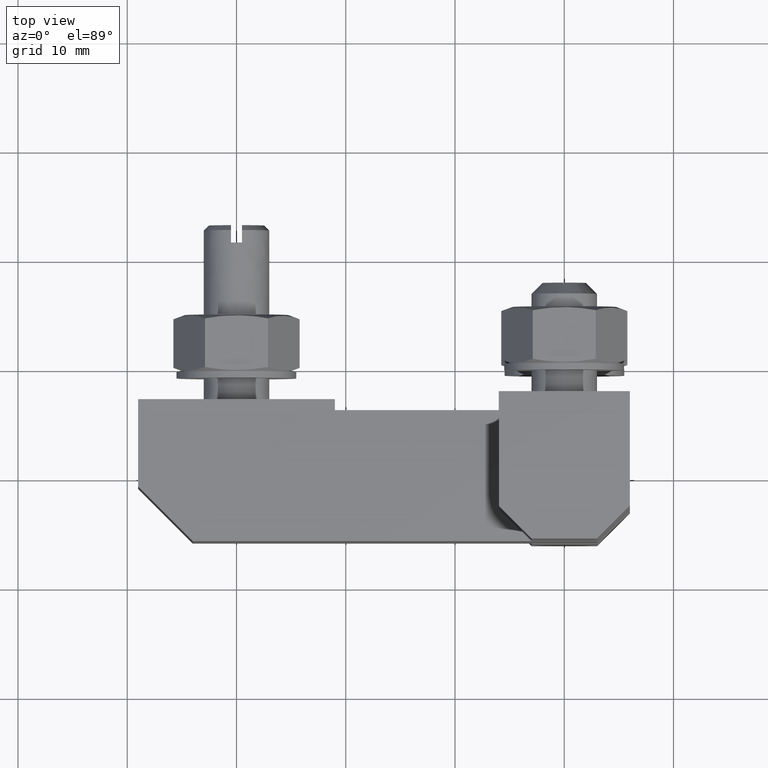
[diagram: clean part render]
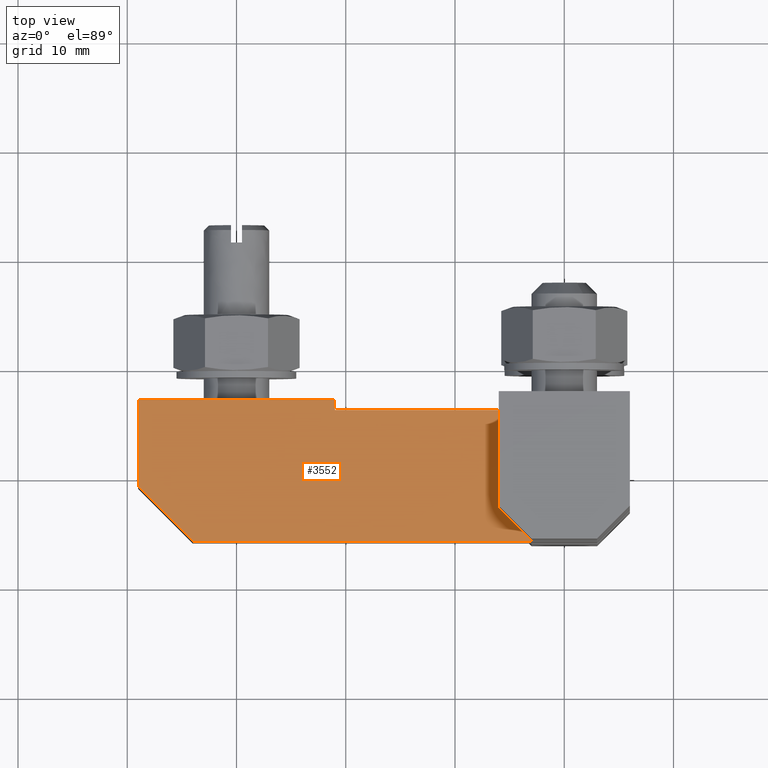
[diagram: same view with one face highlighted and labeled with its STEP entity id]
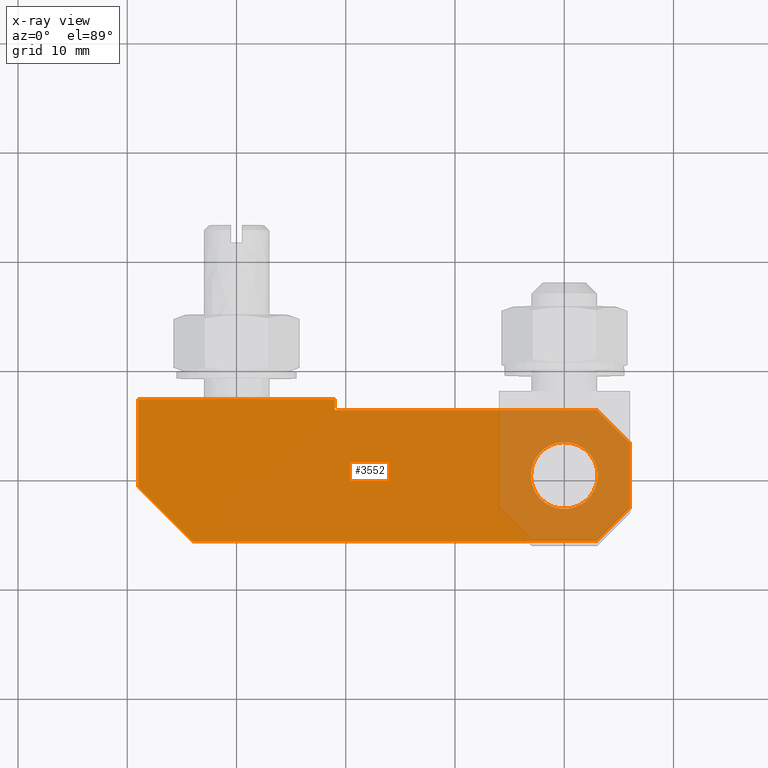
[diagram: x-ray of the same camera — body ghosted, the highlighted face saturated]
A machine part, top view. The second image highlights one B-rep face of the part: STEP entity #3552.
The next image is the same camera in x-ray: the body ghosted, the highlighted face saturated — about 20% of this face is hidden behind the body in this view.
In plain terms, the highlighted face is a freeform B-spline surface patch.
Its self-contained STEP definition (entity closure, byte-faithful):
#3131=CARTESIAN_POINT('',(-0.186198045604629,3.044311135185266,26.600001644901951));
#3132=VERTEX_POINT('',#3131);
#3138=CARTESIAN_POINT('',(-3.049999999999970,0.0,26.600001644901951));
#3139=VERTEX_POINT('',#3138);
#3140=CARTESIAN_POINT('',(-3.049999999999970,0.0,26.600001644901951));
#3141=CARTESIAN_POINT('',(-3.049999999999971,2.869153504018294,26.600001644901948));
#3142=CARTESIAN_POINT('',(-0.186198045604629,3.044311135185267,26.600001644901951));
#3150=(BOUNDED_CURVE()B_SPLINE_CURVE(2,(#3140,#3141,#3142),.UNSPECIFIED.,.F.,.U.)B_SPLINE_CURVE_WITH_KNOTS((3,3),(0.500000000000000,0.739332962239323),.UNSPECIFIED.)CURVE()GEOMETRIC_REPRESENTATION_ITEM()RATIONAL_B_SPLINE_CURVE((1.0,0.719603993286265,0.976072041667531))REPRESENTATION_ITEM(''));
#3151=EDGE_CURVE('',#3139,#3132,#3150,.T.);
#3153=CARTESIAN_POINT('',(0.360000960080733,-3.028679466158289,26.600001644901951));
#3154=VERTEX_POINT('',#3153);
#3155=CARTESIAN_POINT('',(0.360000960080733,-3.028679466158290,26.600001644901948));
#3156=CARTESIAN_POINT('',(0.180631818861247,-3.050000000000000,26.600001644901948));
#3157=CARTESIAN_POINT('',(3.019807E-014,-3.050000000000000,26.600001644901951));
#3158=CARTESIAN_POINT('',(-3.049999999999969,-3.050000000000001,26.600001644901958));
#3159=CARTESIAN_POINT('',(-3.049999999999970,0.0,26.600001644901951));
#3167=(BOUNDED_CURVE()B_SPLINE_CURVE(2,(#3155,#3156,#3157,#3158,#3159),.UNSPECIFIED.,.F.,.U.)B_SPLINE_CURVE_WITH_KNOTS((3,2,3),(0.229562666342763,0.250000000000000,0.500000000000000),.UNSPECIFIED.)CURVE()GEOMETRIC_REPRESENTATION_ITEM()RATIONAL_B_SPLINE_CURVE((0.956027132137278,0.976056174244669,1.0,0.707106781186547,1.0))REPRESENTATION_ITEM(''));
#3168=EDGE_CURVE('',#3154,#3139,#3167,.T.);
#3212=CARTESIAN_POINT('',(3.050000000000031,0.0,26.600001644901951));
#3213=VERTEX_POINT('',#3212);
#3214=CARTESIAN_POINT('',(3.050000000000031,0.0,26.600001644901951));
#3215=CARTESIAN_POINT('',(3.050000000000031,-2.708935416713063,26.600001644901944));
#3216=CARTESIAN_POINT('',(0.360000960080733,-3.028679466158290,26.600001644901948));
#3224=(BOUNDED_CURVE()B_SPLINE_CURVE(2,(#3214,#3215,#3216),.UNSPECIFIED.,.F.,.U.)B_SPLINE_CURVE_WITH_KNOTS((3,3),(0.0,0.229562666342763),.UNSPECIFIED.)CURVE()GEOMETRIC_REPRESENTATION_ITEM()RATIONAL_B_SPLINE_CURVE((1.0,0.731050606941878,0.956027132137278))REPRESENTATION_ITEM(''));
#3225=EDGE_CURVE('',#3213,#3154,#3224,.T.);
#3227=CARTESIAN_POINT('',(-0.186198045604629,3.044311135185266,26.600001644901955));
#3228=CARTESIAN_POINT('',(-0.093185928084076,3.050000000000000,26.600001644901951));
#3229=CARTESIAN_POINT('',(3.019807E-014,3.050000000000000,26.600001644901951));
#3230=CARTESIAN_POINT('',(3.050000000000031,3.050000000000001,26.600001644901958));
#3231=CARTESIAN_POINT('',(3.050000000000031,0.0,26.600001644901951));
#3239=(BOUNDED_CURVE()B_SPLINE_CURVE(2,(#3227,#3228,#3229,#3230,#3231),.UNSPECIFIED.,.F.,.U.)B_SPLINE_CURVE_WITH_KNOTS((3,2,3),(0.739332962239322,0.750000000000000,1.0),.UNSPECIFIED.)CURVE()GEOMETRIC_REPRESENTATION_ITEM()RATIONAL_B_SPLINE_CURVE((0.976072041667530,0.987502787900281,1.0,0.707106781186547,1.0))REPRESENTATION_ITEM(''));
#3240=EDGE_CURVE('',#3132,#3213,#3239,.T.);
#3476=CARTESIAN_POINT('',(-41.247750182232970,-6.649350524826853,26.600001644901901));
#3477=CARTESIAN_POINT('',(8.247751431136658,-6.649350524826853,26.600001644901901));
#3478=CARTESIAN_POINT('',(-41.247750182232970,7.649350324778776,26.600001644901901));
#3479=CARTESIAN_POINT('',(8.247751431136658,7.649350324778776,26.600001644901901));
#3480=B_SPLINE_SURFACE_WITH_KNOTS('',1,1,((#3476,#3478),(#3477,#3479)),.UNSPECIFIED.,.F.,.F.,.U.,(2,2),(2,2),(0.0,49.495501613369633),(0.0,14.298700849605630),.UNSPECIFIED.);
#3481=CARTESIAN_POINT('',(6.000000284984689,-3.000000498723230,26.600001644901951));
#3482=VERTEX_POINT('',#3481);
#3483=CARTESIAN_POINT('',(3.000000142492395,-6.000000641215610,26.600001644901951));
#3484=VERTEX_POINT('',#3483);
#3485=CARTESIAN_POINT('',(6.000000284984689,-3.000000498723230,26.600001644901951));
#3486=CARTESIAN_POINT('',(3.000000142492395,-6.000000641215610,26.600001644901951));
#3487=QUASI_UNIFORM_CURVE('',1,(#3485,#3486),.UNSPECIFIED.,.F.,.U.);
#3488=EDGE_CURVE('',#3482,#3484,#3487,.T.);
#3489=ORIENTED_EDGE('',*,*,#3488,.F.);
#3490=CARTESIAN_POINT('',(6.000000284984689,2.999999928753830,26.600001644901951));
#3491=VERTEX_POINT('',#3490);
#3492=CARTESIAN_POINT('',(6.000000284984689,2.999999928753830,26.600001644901951));
#3493=CARTESIAN_POINT('',(6.000000284984689,-3.000000498723230,26.600001644901951));
#3494=QUASI_UNIFORM_CURVE('',1,(#3492,#3493),.UNSPECIFIED.,.F.,.U.);
#3495=EDGE_CURVE('',#3491,#3482,#3494,.T.);
#3496=ORIENTED_EDGE('',*,*,#3495,.F.);
#3497=CARTESIAN_POINT('',(3.000000284984695,5.999999928753830,26.600001644901951));
#3498=VERTEX_POINT('',#3497);
#3499=CARTESIAN_POINT('',(3.000000284984695,5.999999928753830,26.600001644901951));
#3500=CARTESIAN_POINT('',(6.000000284984689,2.999999928753830,26.600001644901951));
#3501=QUASI_UNIFORM_CURVE('',1,(#3499,#3500),.UNSPECIFIED.,.F.,.U.);
#3502=EDGE_CURVE('',#3498,#3491,#3501,.T.);
#3503=ORIENTED_EDGE('',*,*,#3502,.F.);
#3504=CARTESIAN_POINT('',(-21.000000997446399,5.999999928753830,26.600001644901951));
#3505=VERTEX_POINT('',#3504);
#3506=CARTESIAN_POINT('',(-21.000000997446399,5.999999928753830,26.600001644901951));
#3507=CARTESIAN_POINT('',(3.000000284984695,5.999999928753830,26.600001644901951));
#3508=QUASI_UNIFORM_CURVE('',1,(#3506,#3507),.UNSPECIFIED.,.F.,.U.);
#3509=EDGE_CURVE('',#3505,#3498,#3508,.T.);
#3510=ORIENTED_EDGE('',*,*,#3509,.F.);
#3511=CARTESIAN_POINT('',(-21.000000997446399,6.999999976251281,26.600001644901951));
#3512=VERTEX_POINT('',#3511);
#3513=CARTESIAN_POINT('',(-21.000000997446399,6.999999976251281,26.600001644901951));
#3514=CARTESIAN_POINT('',(-21.000000997446399,5.999999928753830,26.600001644901951));
#3515=QUASI_UNIFORM_CURVE('',1,(#3513,#3514),.UNSPECIFIED.,.F.,.U.);
#3516=EDGE_CURVE('',#3512,#3505,#3515,.T.);
#3517=ORIENTED_EDGE('',*,*,#3516,.F.);
#3518=CARTESIAN_POINT('',(-39.000001852400601,6.999999976251281,26.600001644901951));
#3519=VERTEX_POINT('',#3518);
#3520=CARTESIAN_POINT('',(-39.000001852400601,6.999999976251281,26.600001644901951));
#3521=CARTESIAN_POINT('',(-21.000000997446399,6.999999976251281,26.600001644901951));
#3522=QUASI_UNIFORM_CURVE('',1,(#3520,#3521),.UNSPECIFIED.,.F.,.U.);
#3523=EDGE_CURVE('',#3519,#3512,#3522,.T.);
#3524=ORIENTED_EDGE('',*,*,#3523,.F.);
#3525=CARTESIAN_POINT('',(-39.000001852400601,-1.000000403728300,26.600001644901951));
#3526=VERTEX_POINT('',#3525);
#3527=CARTESIAN_POINT('',(-39.000001852400601,-1.000000403728300,26.600001644901951));
#3528=CARTESIAN_POINT('',(-39.000001852400601,6.999999976251281,26.600001644901951));
#3529=QUASI_UNIFORM_CURVE('',1,(#3527,#3528),.UNSPECIFIED.,.F.,.U.);
#3530=EDGE_CURVE('',#3526,#3519,#3529,.T.);
#3531=ORIENTED_EDGE('',*,*,#3530,.F.);
#3532=CARTESIAN_POINT('',(-34.000001614913202,-6.000000641215610,26.600001644901951));
#3533=VERTEX_POINT('',#3532);
#3534=CARTESIAN_POINT('',(-34.000001614913202,-6.000000641215610,26.600001644901951));
#3535=CARTESIAN_POINT('',(-39.000001852400601,-1.000000403728300,26.600001644901951));
#3536=QUASI_UNIFORM_CURVE('',1,(#3534,#3535),.UNSPECIFIED.,.F.,.U.);
#3537=EDGE_CURVE('',#3533,#3526,#3536,.T.);
#3538=ORIENTED_EDGE('',*,*,#3537,.F.);
#3539=CARTESIAN_POINT('',(3.000000142492395,-6.000000641215610,26.600001644901951));
#3540=CARTESIAN_POINT('',(-34.000001614913202,-6.000000641215610,26.600001644901951));
#3541=QUASI_UNIFORM_CURVE('',1,(#3539,#3540),.UNSPECIFIED.,.F.,.U.);
#3542=EDGE_CURVE('',#3484,#3533,#3541,.T.);
#3543=ORIENTED_EDGE('',*,*,#3542,.F.);
#3544=EDGE_LOOP('',(#3489,#3496,#3503,#3510,#3517,#3524,#3531,#3538,#3543));
#3545=FACE_OUTER_BOUND('',#3544,.T.);
#3546=ORIENTED_EDGE('',*,*,#3151,.T.);
#3547=ORIENTED_EDGE('',*,*,#3240,.T.);
#3548=ORIENTED_EDGE('',*,*,#3225,.T.);
#3549=ORIENTED_EDGE('',*,*,#3168,.T.);
#3550=EDGE_LOOP('',(#3546,#3547,#3548,#3549));
#3551=FACE_BOUND('',#3550,.T.);
#3552=ADVANCED_FACE('',(#3545,#3551),#3480,.T.);